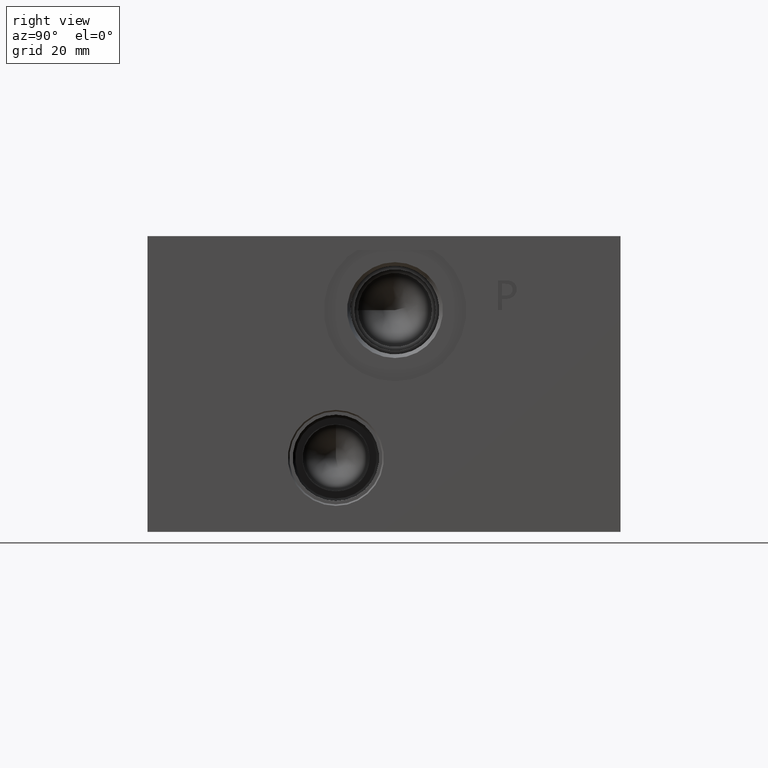
[diagram: clean part render]
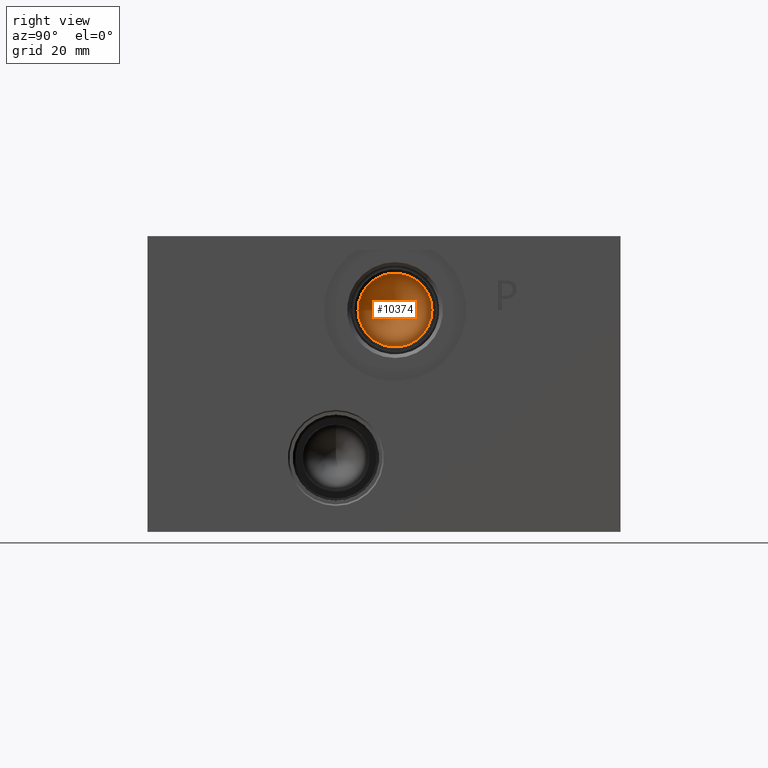
[diagram: same view with one face highlighted and labeled with its STEP entity id]
A machine part, right view. The second image highlights one B-rep face of the part: STEP entity #10374.
In plain terms, the highlighted conical surface has half-angle 60 deg.
Its self-contained STEP definition (entity closure, byte-faithful):
#30=CONICAL_SURFACE('',#10855,3.96875,1.0471975511966);
#190=CIRCLE('',#10856,7.9375);
#191=CIRCLE('',#10857,7.9375);
#1125=FACE_OUTER_BOUND('',#1709,.T.);
#1709=EDGE_LOOP('',(#9011,#9012,#9013,#9014));
#2684=LINE('',#17832,#3623);
#3623=VECTOR('',#12722,3.96875);
#4874=VERTEX_POINT('',#17828);
#4875=VERTEX_POINT('',#17829);
#4876=VERTEX_POINT('',#17831);
#6287=EDGE_CURVE('',#4874,#4875,#190,.T.);
#6288=EDGE_CURVE('',#4875,#4876,#2684,.T.);
#6289=EDGE_CURVE('',#4875,#4874,#191,.T.);
#9011=ORIENTED_EDGE('',*,*,#6287,.T.);
#9012=ORIENTED_EDGE('',*,*,#6288,.T.);
#9013=ORIENTED_EDGE('',*,*,#6288,.F.);
#9014=ORIENTED_EDGE('',*,*,#6289,.T.);
#10374=ADVANCED_FACE('',(#1125),#30,.F.);
#10855=AXIS2_PLACEMENT_3D('',#17827,#12718,#12719);
#10856=AXIS2_PLACEMENT_3D('',#17830,#12720,#12721);
#10857=AXIS2_PLACEMENT_3D('',#17833,#12723,#12724);
#12718=DIRECTION('center_axis',(1.,0.,0.));
#12719=DIRECTION('ref_axis',(0.,1.,0.));
#12720=DIRECTION('center_axis',(1.,0.,0.));
#12721=DIRECTION('ref_axis',(0.,1.,0.));
#12722=DIRECTION('',(-0.5,0.866025403784439,1.06057523872491E-16));
#12723=DIRECTION('center_axis',(1.,0.,0.));
#12724=DIRECTION('ref_axis',(0.,1.,0.));
#17827=CARTESIAN_POINT('Origin',(76.0760411191537,53.1622,47.625));
#17828=CARTESIAN_POINT('',(78.3674,61.0997,47.625));
#17829=CARTESIAN_POINT('',(78.3674,45.2247,47.625));
#17830=CARTESIAN_POINT('Origin',(78.3674,53.1622,47.625));
#17831=CARTESIAN_POINT('',(73.7846822383073,53.1622,47.625));
#17832=CARTESIAN_POINT('',(76.0760411191537,49.19345,47.625));
#17833=CARTESIAN_POINT('Origin',(78.3674,53.1622,47.625));